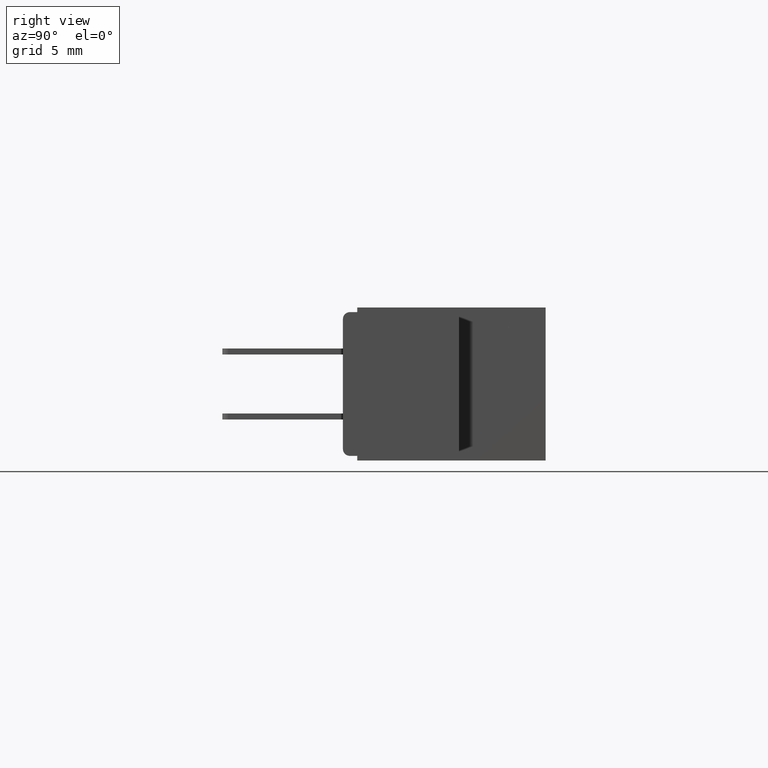
[diagram: clean part render]
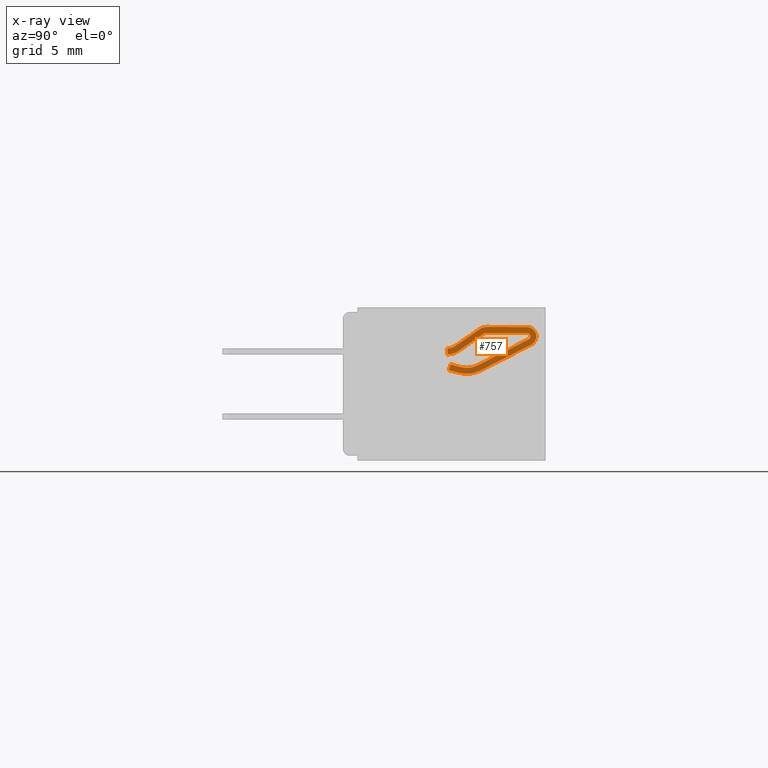
[diagram: x-ray — body ghosted, one internal face saturated and labeled with its STEP entity id]
A machine part, right view, then the same camera in x-ray: the body is ghosted and one INTERNAL B-rep face — a face not visible from any outside direction — is saturated and labeled: STEP entity #757.
In plain terms, the highlighted planar face has unit normal (1, -0, -0).
Its self-contained STEP definition (entity closure, byte-faithful):
#38 = DIRECTION ( 'NONE',  ( 1.000000000000000000, -5.598154130766687900E-013, -1.946441695485786900E-013 ) ) ;
#70 = ORIENTED_EDGE ( 'NONE', *, *, #7450, .T. ) ;
#256 = CARTESIAN_POINT ( 'NONE',  ( -0.06612696325683332900, -0.1875465872387815900, -0.05300000000005554400 ) ) ;
#265 = VECTOR ( 'NONE', #6816, 39.37007874015748100 ) ;
#383 = EDGE_CURVE ( 'NONE', #1534, #8757, #4104, .T. ) ;
#409 = VERTEX_POINT ( 'NONE', #7469 ) ;
#418 = ORIENTED_EDGE ( 'NONE', *, *, #2520, .T. ) ;
#518 = DIRECTION ( 'NONE',  ( -0.9999815896634146600, 0.006067976123055325600, 1.968263762799167500E-013 ) ) ;
#640 = VERTEX_POINT ( 'NONE', #8437 ) ;
#711 = DIRECTION ( 'NONE',  ( 1.000000000000000000, -5.585653487045664500E-013, -1.939124245502752300E-013 ) ) ;
#745 = DIRECTION ( 'NONE',  ( 1.945099342155323400E-013, -3.823388574706849400E-013, -1.000000000000000000 ) ) ;
#757 = ADVANCED_FACE ( 'NONE', ( #5647 ), #9326, .F. ) ;
#769 = EDGE_CURVE ( 'NONE', #5184, #1554, #10079, .T. ) ;
#780 = EDGE_CURVE ( 'NONE', #9956, #9332, #9180, .T. ) ;
#819 = CARTESIAN_POINT ( 'NONE',  ( -0.08710075708029495200, -0.03349358515435987100, -0.05300000000000186500 ) ) ;
#882 = DIRECTION ( 'NONE',  ( 1.000000000000000000, -5.570408799581040500E-013, -1.946441695485788900E-013 ) ) ;
#939 = EDGE_CURVE ( 'NONE', #10383, #5828, #1546, .T. ) ;
#959 = EDGE_CURVE ( 'NONE', #8757, #640, #9971, .T. ) ;
#970 = CARTESIAN_POINT ( 'NONE',  ( -0.08617407356351376700, -0.04649944769011902400, -0.05300000000000186500 ) ) ;
#1007 = VERTEX_POINT ( 'NONE', #3583 ) ;
#1032 = LINE ( 'NONE', #256, #8095 ) ;
#1093 = VERTEX_POINT ( 'NONE', #6760 ) ;
#1130 = ORIENTED_EDGE ( 'NONE', *, *, #10711, .T. ) ;
#1227 = AXIS2_PLACEMENT_3D ( 'NONE', #10875, #6357, #882 ) ;
#1250 = DIRECTION ( 'NONE',  ( 1.945099342155323400E-013, -3.823388574706849400E-013, -1.000000000000000000 ) ) ;
#1267 = VERTEX_POINT ( 'NONE', #6762 ) ;
#1295 = EDGE_CURVE ( 'NONE', #1007, #9723, #7117, .T. ) ;
#1354 = AXIS2_PLACEMENT_3D ( 'NONE', #8104, #8093, #8085 ) ;
#1534 = VERTEX_POINT ( 'NONE', #4553 ) ;
#1546 = LINE ( 'NONE', #819, #8461 ) ;
#1554 = VERTEX_POINT ( 'NONE', #10886 ) ;
#1568 = EDGE_CURVE ( 'NONE', #6641, #9956, #1688, .T. ) ;
#1590 = EDGE_CURVE ( 'NONE', #1093, #640, #1032, .T. ) ;
#1688 = CIRCLE ( 'NONE', #7074, 0.04300000000000001000 ) ;
#1926 = EDGE_CURVE ( 'NONE', #1554, #10176, #4353, .T. ) ;
#2009 = DIRECTION ( 'NONE',  ( 0.9659258262886524200, -0.2588190451040729400, -2.868387469246381600E-013 ) ) ;
#2039 = CARTESIAN_POINT ( 'NONE',  ( -0.02519155326931819500, 0.05271858963832422300, -0.05300000000000077600 ) ) ;
#2167 = DIRECTION ( 'NONE',  ( 1.945099342155323400E-013, -3.823388574706849400E-013, -1.000000000000000000 ) ) ;
#2248 = CARTESIAN_POINT ( 'NONE',  ( 0.0000000000000000000, -0.1816857247072821400, -0.05300000000005554400 ) ) ;
#2417 = CARTESIAN_POINT ( 'NONE',  ( -0.02905904774490352900, 0.04029629131453759500, -0.05300000000000077600 ) ) ;
#2520 = EDGE_CURVE ( 'NONE', #10176, #1007, #8188, .T. ) ;
#2545 = CIRCLE ( 'NONE', #8704, 0.007000000000000021000 ) ;
#2754 = CARTESIAN_POINT ( 'NONE',  ( -0.1714759372736673100, -0.01785497325657043100, -0.05299999999999967900 ) ) ;
#2771 = ORIENTED_EDGE ( 'NONE', *, *, #1590, .T. ) ;
#2926 = LINE ( 'NONE', #2248, #265 ) ;
#3003 = CIRCLE ( 'NONE', #1354, 0.007000000000000021000 ) ;
#3153 = EDGE_CURVE ( 'NONE', #6641, #8067, #2926, .T. ) ;
#3249 = CARTESIAN_POINT ( 'NONE',  ( -0.02444959710752677600, 0.005372548696468232500, -0.05299999999999967900 ) ) ;
#3398 = VECTOR ( 'NONE', #7036, 39.37007874015748900 ) ;
#3467 = ORIENTED_EDGE ( 'NONE', *, *, #780, .F. ) ;
#3583 = CARTESIAN_POINT ( 'NONE',  ( -0.1810798099947914000, -0.008158149732460836700, -0.05299999999999967900 ) ) ;
#3586 = ORIENTED_EDGE ( 'NONE', *, *, #6272, .F. ) ;
#3627 = CARTESIAN_POINT ( 'NONE',  ( -0.1720000000000006500, -0.02597828021620919900, -0.05299999999999967900 ) ) ;
#3635 = AXIS2_PLACEMENT_3D ( 'NONE', #8968, #8961, #9751 ) ;
#3730 = ORIENTED_EDGE ( 'NONE', *, *, #4586, .T. ) ;
#3744 = CARTESIAN_POINT ( 'NONE',  ( -0.1773778137702813100, -0.006271888441837110100, -0.05299999999999967900 ) ) ;
#3746 = ORIENTED_EDGE ( 'NONE', *, *, #1568, .F. ) ;
#3996 = EDGE_CURVE ( 'NONE', #9332, #10383, #9098, .T. ) ;
#4010 = ORIENTED_EDGE ( 'NONE', *, *, #10355, .T. ) ;
#4104 = CIRCLE ( 'NONE', #8808, 0.05000000000000001000 ) ;
#4353 = CIRCLE ( 'NONE', #6492, 0.02000000000000000700 ) ;
#4401 = VECTOR ( 'NONE', #2009, 39.37007874015748100 ) ;
#4419 = CARTESIAN_POINT ( 'NONE',  ( -0.04199999999999998900, -0.007999999999974685300, -0.05299999999999967900 ) ) ;
#4534 = VECTOR ( 'NONE', #8320, 39.37007874015748900 ) ;
#4542 = DIRECTION ( 'NONE',  ( 1.000000000000000000, -5.570905138242674900E-013, -1.945647553627163900E-013 ) ) ;
#4553 = CARTESIAN_POINT ( 'NONE',  ( -0.06469952498700630400, 0.03655032620941663100, -0.05300000000000077600 ) ) ;
#4586 = EDGE_CURVE ( 'NONE', #1267, #409, #7811, .T. ) ;
#4630 = CIRCLE ( 'NONE', #1227, 0.02999999999999997800 ) ;
#4713 = VERTEX_POINT ( 'NONE', #9374 ) ;
#4837 = ORIENTED_EDGE ( 'NONE', *, *, #1926, .T. ) ;
#4853 = CARTESIAN_POINT ( 'NONE',  ( -0.1790000000000006600, -0.02597828021610488000, -0.05300000000000103900 ) ) ;
#4980 = ORIENTED_EDGE ( 'NONE', *, *, #3153, .T. ) ;
#4996 = CARTESIAN_POINT ( 'NONE',  ( -0.02569440015891199700, 0.05285332705630742300, -0.05300000000000077600 ) ) ;
#5070 = VECTOR ( 'NONE', #5244, 39.37007874015748100 ) ;
#5184 = VERTEX_POINT ( 'NONE', #970 ) ;
#5244 = DIRECTION ( 'NONE',  ( -0.8226174115432847200, -0.5685952815718979800, -5.738881171481423200E-014 ) ) ;
#5296 = DIRECTION ( 'NONE',  ( 1.000000000000000000, -5.535007247579805300E-013, -1.944544578823520200E-013 ) ) ;
#5401 = ORIENTED_EDGE ( 'NONE', *, *, #383, .F. ) ;
#5446 = DIRECTION ( 'NONE',  ( -0.8226174115432852700, -0.5685952815718972000, -5.738881171481396700E-014 ) ) ;
#5647 = FACE_OUTER_BOUND ( 'NONE', #9567, .T. ) ;
#5694 = ORIENTED_EDGE ( 'NONE', *, *, #1295, .T. ) ;
#5697 = ORIENTED_EDGE ( 'NONE', *, *, #8995, .F. ) ;
#5717 = AXIS2_PLACEMENT_3D ( 'NONE', #9302, #745, #38 ) ;
#5828 = VERTEX_POINT ( 'NONE', #10270 ) ;
#6116 = CIRCLE ( 'NONE', #9728, 0.06300000000000001400 ) ;
#6207 = CARTESIAN_POINT ( 'NONE',  ( -2.919662543228681400E-014, 0.01300000000012840200, -0.05299999999999967900 ) ) ;
#6223 = DIRECTION ( 'NONE',  ( 1.945099342155323400E-013, -3.823388574706849400E-013, -1.000000000000000000 ) ) ;
#6272 = EDGE_CURVE ( 'NONE', #5828, #6927, #3003, .T. ) ;
#6357 = DIRECTION ( 'NONE',  ( -1.945099342155323400E-013, 3.823388574706849400E-013, 1.000000000000000000 ) ) ;
#6492 = AXIS2_PLACEMENT_3D ( 'NONE', #3627, #8109, #6996 ) ;
#6641 = VERTEX_POINT ( 'NONE', #6207 ) ;
#6647 = DIRECTION ( 'NONE',  ( -0.2588190451008788300, -0.9659258262895081800, -3.189681013869208900E-013 ) ) ;
#6657 = CARTESIAN_POINT ( 'NONE',  ( -0.08599203427983180500, -0.01650000000012896000, -0.05299999999999967900 ) ) ;
#6760 = CARTESIAN_POINT ( 'NONE',  ( -0.003318516526151767600, 0.04685772710699791200, -0.05300000000000077600 ) ) ;
#6762 = CARTESIAN_POINT ( 'NONE',  ( -0.01705785844711167600, -0.005321477653588979600, -0.05299999999999967900 ) ) ;
#6816 = DIRECTION ( 'NONE',  ( 5.570544026043898200E-013, -1.000000000000000000, -3.823388574689736800E-013 ) ) ;
#6927 = VERTEX_POINT ( 'NONE', #4853 ) ;
#6972 = CARTESIAN_POINT ( 'NONE',  ( -0.1549480763969008900, -0.08482833756623335600, -0.05300000000007617400 ) ) ;
#6996 = DIRECTION ( 'NONE',  ( 1.000000000000000000, -5.570408799581034400E-013, -1.946441695485786900E-013 ) ) ;
#7023 = CARTESIAN_POINT ( 'NONE',  ( 0.0000000000000000000, 1.283968557022203800E-013, -0.05299999999999967900 ) ) ;
#7036 = DIRECTION ( 'NONE',  ( 0.9659258262886524200, -0.2588190451040728300, -2.868387469246381600E-013 ) ) ;
#7042 = DIRECTION ( 'NONE',  ( -1.945099342155323400E-013, 3.823388574706849400E-013, 1.000000000000000000 ) ) ;
#7074 = AXIS2_PLACEMENT_3D ( 'NONE', #8822, #7042, #4542 ) ;
#7117 = LINE ( 'NONE', #3744, #4534 ) ;
#7384 = VECTOR ( 'NONE', #10804, 39.37007874015748100 ) ;
#7450 = EDGE_CURVE ( 'NONE', #10444, #1093, #8837, .T. ) ;
#7469 = CARTESIAN_POINT ( 'NONE',  ( -0.06893417583271971300, -0.04117852234654903500, -0.05300000000000186500 ) ) ;
#7500 = DIRECTION ( 'NONE',  ( 1.000000000000000000, -5.570408799581101100E-013, -1.946441695485809800E-013 ) ) ;
#7572 = VECTOR ( 'NONE', #5446, 39.37007874015748100 ) ;
#7811 = LINE ( 'NONE', #8465, #7572 ) ;
#7904 = DIRECTION ( 'NONE',  ( 1.000000000000000000, -5.552694472747119100E-013, -1.944734290489746900E-013 ) ) ;
#8067 = VERTEX_POINT ( 'NONE', #7023 ) ;
#8085 = DIRECTION ( 'NONE',  ( 1.000000000000000000, -5.603947112003237600E-013, -1.939124245502752300E-013 ) ) ;
#8093 = DIRECTION ( 'NONE',  ( 1.945099342155323400E-013, -3.823388574706849400E-013, -1.000000000000000000 ) ) ;
#8095 = VECTOR ( 'NONE', #6647, 39.37007874015748100 ) ;
#8104 = CARTESIAN_POINT ( 'NONE',  ( -0.1720000000000006500, -0.02597828021620919900, -0.05299999999999967900 ) ) ;
#8109 = DIRECTION ( 'NONE',  ( 1.945099342155323400E-013, -3.823388574706849400E-013, -1.000000000000000000 ) ) ;
#8139 = AXIS2_PLACEMENT_3D ( 'NONE', #9265, #9658, #10191 ) ;
#8154 = ORIENTED_EDGE ( 'NONE', *, *, #939, .F. ) ;
#8188 = CIRCLE ( 'NONE', #5717, 0.02000000000000000700 ) ;
#8220 = VECTOR ( 'NONE', #8689, 39.37007874015748100 ) ;
#8236 = EDGE_CURVE ( 'NONE', #4713, #1534, #8455, .T. ) ;
#8320 = DIRECTION ( 'NONE',  ( 0.8910065241876947700, 0.4539904997408676900, 2.685885675559518400E-016 ) ) ;
#8394 = ORIENTED_EDGE ( 'NONE', *, *, #3996, .F. ) ;
#8437 = CARTESIAN_POINT ( 'NONE',  ( -0.006683164112143262700, 0.03430069136522995900, -0.05300000000000077600 ) ) ;
#8455 = LINE ( 'NONE', #2754, #8220 ) ;
#8461 = VECTOR ( 'NONE', #518, 39.37007874015748100 ) ;
#8465 = CARTESIAN_POINT ( 'NONE',  ( -0.1475563377364580200, -0.09552236391643970100, -0.05300000000007617400 ) ) ;
#8689 = DIRECTION ( 'NONE',  ( 0.8910065241876947700, 0.4539904997408678000, 2.685885675559942400E-016 ) ) ;
#8704 = AXIS2_PLACEMENT_3D ( 'NONE', #10781, #6223, #711 ) ;
#8736 = CARTESIAN_POINT ( 'NONE',  ( -0.02855620085530975700, 0.04016155389656429800, -0.05300000000000077600 ) ) ;
#8757 = VERTEX_POINT ( 'NONE', #2417 ) ;
#8808 = AXIS2_PLACEMENT_3D ( 'NONE', #9802, #2167, #7904 ) ;
#8822 = CARTESIAN_POINT ( 'NONE',  ( 0.0000000000000000000, -0.03000000000021104900, -0.05300000000000186500 ) ) ;
#8837 = LINE ( 'NONE', #2039, #4401 ) ;
#8961 = DIRECTION ( 'NONE',  ( 1.945099342155323400E-013, -3.823388574706849400E-013, -1.000000000000000000 ) ) ;
#8968 = CARTESIAN_POINT ( 'NONE',  ( -0.08599203427983180500, -0.01650000000012896000, -0.05299999999999967900 ) ) ;
#8995 = EDGE_CURVE ( 'NONE', #6927, #4713, #2545, .T. ) ;
#9033 = CARTESIAN_POINT ( 'NONE',  ( -0.08609518987391366600, -0.03349968702449518400, -0.05300000000000186500 ) ) ;
#9098 = CIRCLE ( 'NONE', #3635, 0.01699999999999984500 ) ;
#9180 = LINE ( 'NONE', #6972, #5070 ) ;
#9265 = CARTESIAN_POINT ( 'NONE',  ( -0.08800000000003659100, -0.1816857247071045100, -0.05300000000005554400 ) ) ;
#9302 = CARTESIAN_POINT ( 'NONE',  ( -0.1720000000000006500, -0.02597828021620919900, -0.05299999999999967900 ) ) ;
#9326 = PLANE ( 'NONE',  #8139 ) ;
#9332 = VERTEX_POINT ( 'NONE', #10353 ) ;
#9374 = CARTESIAN_POINT ( 'NONE',  ( -0.1751779334981774000, -0.01974123454689918600, -0.05299999999999967900 ) ) ;
#9456 = ORIENTED_EDGE ( 'NONE', *, *, #959, .F. ) ;
#9503 = CARTESIAN_POINT ( 'NONE',  ( -0.07060140148396144800, 0.04813341102395973100, -0.05300000000000077600 ) ) ;
#9567 = EDGE_LOOP ( 'NONE', ( #70, #2771, #9456, #5401, #9682, #5697, #3586, #8154, #8394, #3467, #3746, #4980, #9782, #3730, #4010, #10853, #4837, #418, #5694, #1130 ) ) ;
#9658 = DIRECTION ( 'NONE',  ( 1.945099342157599700E-013, 3.823388574704683000E-013, 1.000000000000000000 ) ) ;
#9682 = ORIENTED_EDGE ( 'NONE', *, *, #8236, .F. ) ;
#9723 = VERTEX_POINT ( 'NONE', #9503 ) ;
#9728 = AXIS2_PLACEMENT_3D ( 'NONE', #4419, #10068, #5296 ) ;
#9751 = DIRECTION ( 'NONE',  ( 1.000000000000000000, -5.570408799581086900E-013, -1.943428627845734500E-013 ) ) ;
#9774 = AXIS2_PLACEMENT_3D ( 'NONE', #6657, #1250, #7500 ) ;
#9782 = ORIENTED_EDGE ( 'NONE', *, *, #10159, .T. ) ;
#9802 = CARTESIAN_POINT ( 'NONE',  ( -0.04199999999999998900, -0.007999999999974685300, -0.05299999999999967900 ) ) ;
#9956 = VERTEX_POINT ( 'NONE', #3249 ) ;
#9971 = LINE ( 'NONE', #8736, #3398 ) ;
#10068 = DIRECTION ( 'NONE',  ( 1.945099342155323400E-013, -3.823388574706849400E-013, -1.000000000000000000 ) ) ;
#10079 = LINE ( 'NONE', #10740, #7384 ) ;
#10159 = EDGE_CURVE ( 'NONE', #8067, #1267, #4630, .T. ) ;
#10176 = VERTEX_POINT ( 'NONE', #10910 ) ;
#10191 = DIRECTION ( 'NONE',  ( 1.000000000000000000, -5.570544026068722700E-013, -1.945099342155469900E-013 ) ) ;
#10270 = CARTESIAN_POINT ( 'NONE',  ( -0.1720424758328577800, -0.03297815134377862800, -0.05300000000000186500 ) ) ;
#10353 = CARTESIAN_POINT ( 'NONE',  ( -0.07632591449313479200, -0.03048449599635893300, -0.05300000000000186500 ) ) ;
#10355 = EDGE_CURVE ( 'NONE', #409, #5184, #10780, .T. ) ;
#10383 = VERTEX_POINT ( 'NONE', #9033 ) ;
#10444 = VERTEX_POINT ( 'NONE', #4996 ) ;
#10711 = EDGE_CURVE ( 'NONE', #9723, #10444, #6116, .T. ) ;
#10740 = CARTESIAN_POINT ( 'NONE',  ( -0.08717964076989573300, -0.04649334581998364200, -0.05300000000000186500 ) ) ;
#10780 = CIRCLE ( 'NONE', #9774, 0.02999999999999965500 ) ;
#10781 = CARTESIAN_POINT ( 'NONE',  ( -0.1720000000000006500, -0.02597828021620919900, -0.05299999999999967900 ) ) ;
#10804 = DIRECTION ( 'NONE',  ( -0.9999815896634146600, 0.006067976123051253300, 1.968263762799167500E-013 ) ) ;
#10853 = ORIENTED_EDGE ( 'NONE', *, *, #769, .T. ) ;
#10875 = CARTESIAN_POINT ( 'NONE',  ( 0.0000000000000000000, -0.03000000000021104900, -0.05300000000000186500 ) ) ;
#10886 = CARTESIAN_POINT ( 'NONE',  ( -0.1721213595224498300, -0.04597791200940299500, -0.05300000000000186500 ) ) ;
#10910 = CARTESIAN_POINT ( 'NONE',  ( -0.1920000000000006700, -0.02597828021609763900, -0.05300000000000357200 ) ) ;